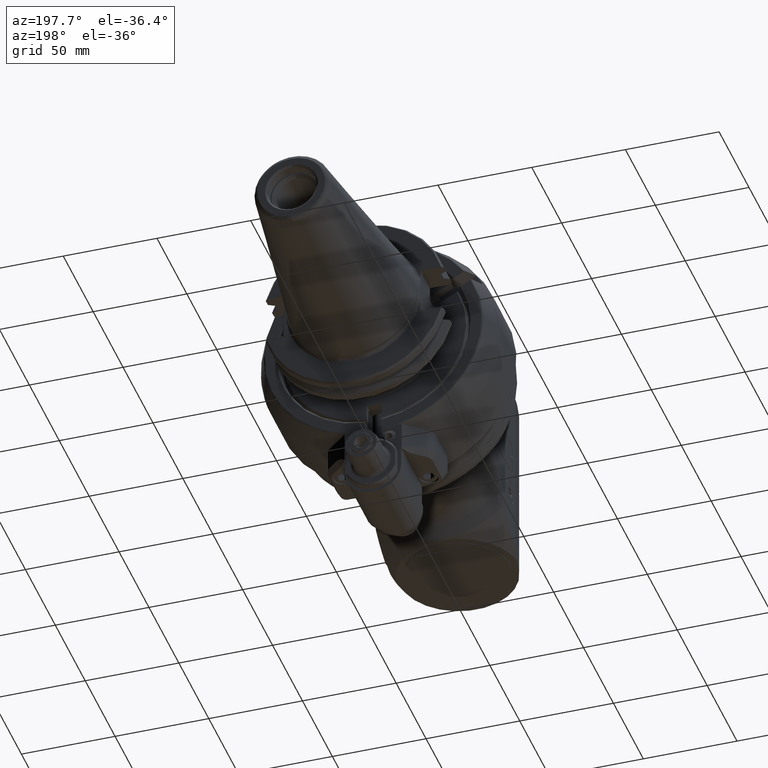
[diagram: clean part render]
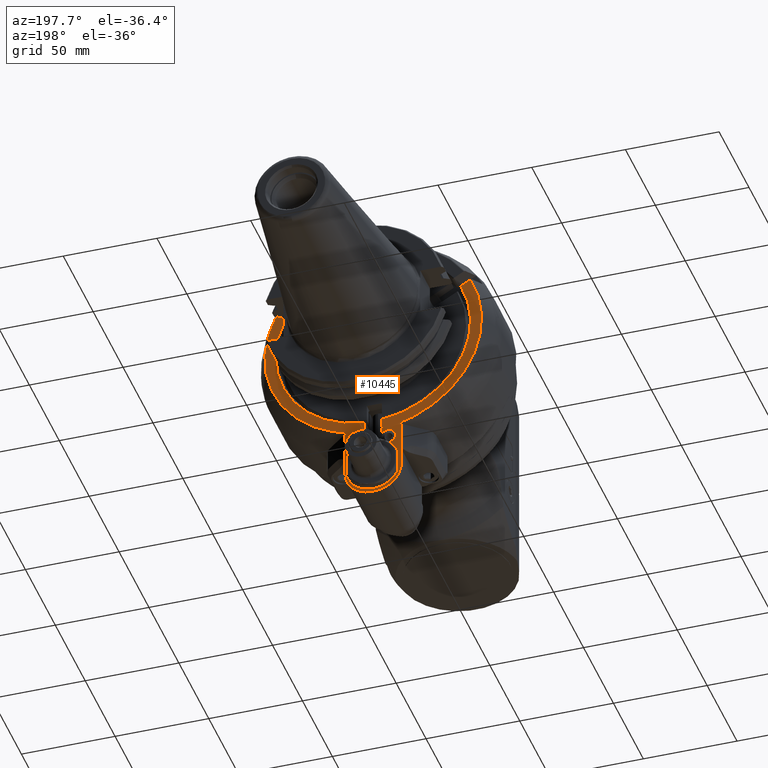
[diagram: same view with one face highlighted and labeled with its STEP entity id]
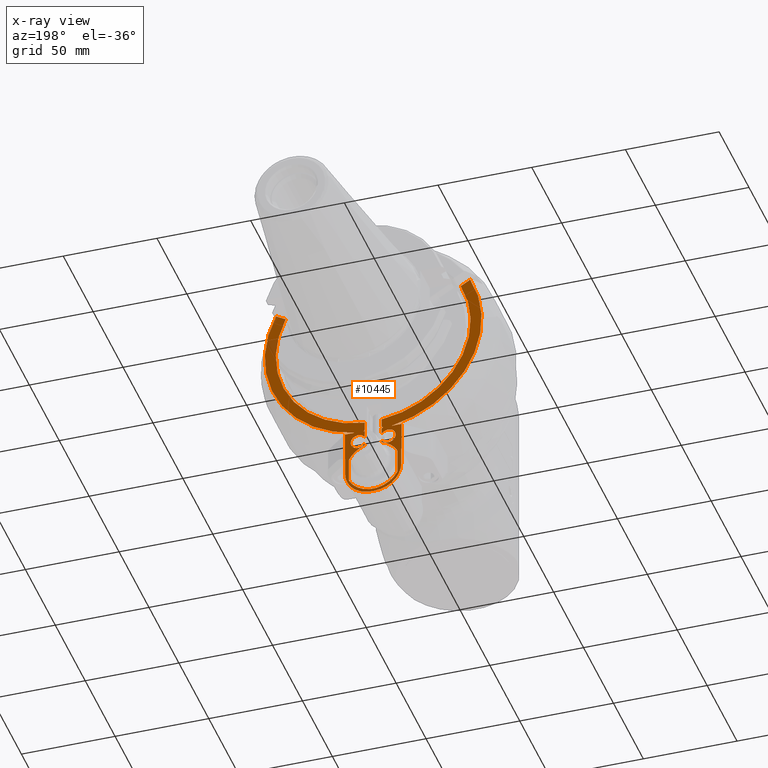
[diagram: x-ray of the same camera — body ghosted, the highlighted face saturated]
A machine part, auxiliary view. The second image highlights one B-rep face of the part: STEP entity #10445.
The next image is the same camera in x-ray: the body ghosted, the highlighted face saturated — about 3% of this face is hidden behind the body in this view.
In plain terms, the highlighted planar face has unit normal (0, -1, 0).
Its self-contained STEP definition (entity closure, byte-faithful):
#555=LINE('',#16483,#1248);
#559=LINE('',#16495,#1252);
#561=LINE('',#16502,#1254);
#562=LINE('',#16506,#1255);
#563=LINE('',#16510,#1256);
#564=LINE('',#16512,#1257);
#565=LINE('',#16516,#1258);
#566=LINE('',#16518,#1259);
#567=LINE('',#16524,#1260);
#568=LINE('',#16528,#1261);
#569=LINE('',#16532,#1262);
#570=LINE('',#16534,#1263);
#571=LINE('',#16536,#1264);
#572=LINE('',#16538,#1265);
#573=LINE('',#16540,#1266);
#574=LINE('',#16542,#1267);
#575=LINE('',#16544,#1268);
#576=LINE('',#16548,#1269);
#577=LINE('',#16551,#1270);
#578=LINE('',#16553,#1271);
#579=LINE('',#16557,#1272);
#580=LINE('',#16561,#1273);
#581=LINE('',#16567,#1274);
#582=LINE('',#16569,#1275);
#583=LINE('',#16573,#1276);
#584=LINE('',#16574,#1277);
#1248=VECTOR('',#12761,0.1128483482606);
#1252=VECTOR('',#12775,9.5);
#1254=VECTOR('',#12781,12.84523257867);
#1255=VECTOR('',#12784,12.84523257867);
#1256=VECTOR('',#12787,0.7159512479098);
#1257=VECTOR('',#12788,0.3775010008008);
#1258=VECTOR('',#12791,0.3775010008008);
#1259=VECTOR('',#12792,2.5);
#1260=VECTOR('',#12797,4.195077453973);
#1261=VECTOR('',#12800,5.87481064190873);
#1262=VECTOR('',#12803,5.157013978268);
#1263=VECTOR('',#12804,15.5);
#1264=VECTOR('',#12805,0.1128483482606);
#1265=VECTOR('',#12806,0.7629679276389);
#1266=VECTOR('',#12807,10.);
#1267=VECTOR('',#12808,10.);
#1268=VECTOR('',#12809,8.70839142844);
#1269=VECTOR('',#12812,2.);
#1270=VECTOR('',#12815,15.5);
#1271=VECTOR('',#12816,5.157013978268);
#1272=VECTOR('',#12819,5.87482370131279);
#1273=VECTOR('',#12822,4.195077453972);
#1274=VECTOR('',#12827,2.5);
#1275=VECTOR('',#12828,0.3775010008008);
#1276=VECTOR('',#12831,0.3775010008008);
#1277=VECTOR('',#12832,0.7159512479098);
#2192=PLANE('',#11245);
#2489=FACE_OUTER_BOUND('',#3159,.T.);
#3159=EDGE_LOOP('',(#7436,#7437,#7438,#7439,#7440,#7441,#7442,#7443,#7444,
#7445,#7446,#7447,#7448,#7449,#7450,#7451,#7452,#7453,#7454,#7455,#7456,
#7457,#7458,#7459,#7460,#7461,#7462,#7463,#7464,#7465,#7466,#7467,#7468,
#7469,#7470,#7471,#7472,#7473,#7474,#7475,#7476));
#3936=CIRCLE('',#11246,14.5);
#3937=CIRCLE('',#11247,14.5);
#3938=CIRCLE('',#11248,14.5);
#3939=CIRCLE('',#11249,4.);
#3940=CIRCLE('',#11250,1.);
#3941=CIRCLE('',#11251,1.);
#3942=CIRCLE('',#11252,52.);
#3943=CIRCLE('',#11253,57.86292973919);
#3944=CIRCLE('',#11254,14.);
#3945=CIRCLE('',#11255,14.);
#3946=CIRCLE('',#11256,57.86292973919);
#3947=CIRCLE('',#11257,52.);
#3948=CIRCLE('',#11258,1.);
#3949=CIRCLE('',#11259,1.);
#3950=CIRCLE('',#11260,4.);
#4592=VERTEX_POINT('',#16480);
#4593=VERTEX_POINT('',#16482);
#4596=VERTEX_POINT('',#16494);
#4597=VERTEX_POINT('',#16498);
#4598=VERTEX_POINT('',#16499);
#4599=VERTEX_POINT('',#16501);
#4600=VERTEX_POINT('',#16503);
#4601=VERTEX_POINT('',#16505);
#4602=VERTEX_POINT('',#16507);
#4603=VERTEX_POINT('',#16509);
#4604=VERTEX_POINT('',#16511);
#4605=VERTEX_POINT('',#16513);
#4606=VERTEX_POINT('',#16515);
#4607=VERTEX_POINT('',#16517);
#4608=VERTEX_POINT('',#16519);
#4609=VERTEX_POINT('',#16521);
#4610=VERTEX_POINT('',#16523);
#4611=VERTEX_POINT('',#16525);
#4612=VERTEX_POINT('',#16527);
#4613=VERTEX_POINT('',#16529);
#4614=VERTEX_POINT('',#16531);
#4615=VERTEX_POINT('',#16533);
#4616=VERTEX_POINT('',#16535);
#4617=VERTEX_POINT('',#16537);
#4618=VERTEX_POINT('',#16539);
#4619=VERTEX_POINT('',#16541);
#4620=VERTEX_POINT('',#16543);
#4621=VERTEX_POINT('',#16545);
#4622=VERTEX_POINT('',#16547);
#4623=VERTEX_POINT('',#16550);
#4624=VERTEX_POINT('',#16552);
#4625=VERTEX_POINT('',#16554);
#4626=VERTEX_POINT('',#16556);
#4627=VERTEX_POINT('',#16558);
#4628=VERTEX_POINT('',#16560);
#4629=VERTEX_POINT('',#16562);
#4630=VERTEX_POINT('',#16564);
#4631=VERTEX_POINT('',#16566);
#4632=VERTEX_POINT('',#16568);
#4633=VERTEX_POINT('',#16570);
#4634=VERTEX_POINT('',#16572);
#5691=EDGE_CURVE('',#4593,#4592,#555,.T.);
#5697=EDGE_CURVE('',#4596,#4593,#559,.T.);
#5699=EDGE_CURVE('',#4597,#4598,#3936,.T.);
#5700=EDGE_CURVE('',#4599,#4597,#561,.T.);
#5701=EDGE_CURVE('',#4600,#4599,#3937,.T.);
#5702=EDGE_CURVE('',#4601,#4600,#562,.T.);
#5703=EDGE_CURVE('',#4602,#4601,#3938,.T.);
#5704=EDGE_CURVE('',#4602,#4603,#563,.T.);
#5705=EDGE_CURVE('',#4604,#4603,#564,.T.);
#5706=EDGE_CURVE('',#4604,#4605,#3939,.T.);
#5707=EDGE_CURVE('',#4606,#4605,#565,.T.);
#5708=EDGE_CURVE('',#4606,#4607,#566,.T.);
#5709=EDGE_CURVE('',#4607,#4608,#3940,.T.);
#5710=EDGE_CURVE('',#4608,#4609,#3941,.T.);
#5711=EDGE_CURVE('',#4610,#4609,#567,.T.);
#5712=EDGE_CURVE('',#4610,#4611,#3942,.T.);
#5713=EDGE_CURVE('',#4611,#4612,#568,.T.);
#5714=EDGE_CURVE('',#4612,#4613,#3943,.T.);
#5715=EDGE_CURVE('',#4613,#4614,#569,.T.);
#5716=EDGE_CURVE('',#4615,#4614,#570,.T.);
#5717=EDGE_CURVE('',#4615,#4616,#571,.T.);
#5718=EDGE_CURVE('',#4617,#4616,#572,.T.);
#5719=EDGE_CURVE('',#4617,#4618,#573,.T.);
#5720=EDGE_CURVE('',#4618,#4619,#574,.T.);
#5721=EDGE_CURVE('',#4620,#4619,#575,.T.);
#5722=EDGE_CURVE('',#4620,#4621,#3944,.T.);
#5723=EDGE_CURVE('',#4621,#4622,#576,.T.);
#5724=EDGE_CURVE('',#4622,#4596,#3945,.T.);
#5725=EDGE_CURVE('',#4623,#4592,#577,.T.);
#5726=EDGE_CURVE('',#4624,#4623,#578,.T.);
#5727=EDGE_CURVE('',#4624,#4625,#3946,.T.);
#5728=EDGE_CURVE('',#4625,#4626,#579,.T.);
#5729=EDGE_CURVE('',#4626,#4627,#3947,.T.);
#5730=EDGE_CURVE('',#4628,#4627,#580,.T.);
#5731=EDGE_CURVE('',#4628,#4629,#3948,.T.);
#5732=EDGE_CURVE('',#4629,#4630,#3949,.T.);
#5733=EDGE_CURVE('',#4630,#4631,#581,.T.);
#5734=EDGE_CURVE('',#4632,#4631,#582,.T.);
#5735=EDGE_CURVE('',#4632,#4633,#3950,.T.);
#5736=EDGE_CURVE('',#4634,#4633,#583,.T.);
#5737=EDGE_CURVE('',#4634,#4598,#584,.T.);
#7436=ORIENTED_EDGE('',*,*,#5699,.F.);
#7437=ORIENTED_EDGE('',*,*,#5700,.F.);
#7438=ORIENTED_EDGE('',*,*,#5701,.F.);
#7439=ORIENTED_EDGE('',*,*,#5702,.F.);
#7440=ORIENTED_EDGE('',*,*,#5703,.F.);
#7441=ORIENTED_EDGE('',*,*,#5704,.T.);
#7442=ORIENTED_EDGE('',*,*,#5705,.F.);
#7443=ORIENTED_EDGE('',*,*,#5706,.T.);
#7444=ORIENTED_EDGE('',*,*,#5707,.F.);
#7445=ORIENTED_EDGE('',*,*,#5708,.T.);
#7446=ORIENTED_EDGE('',*,*,#5709,.T.);
#7447=ORIENTED_EDGE('',*,*,#5710,.T.);
#7448=ORIENTED_EDGE('',*,*,#5711,.F.);
#7449=ORIENTED_EDGE('',*,*,#5712,.T.);
#7450=ORIENTED_EDGE('',*,*,#5713,.T.);
#7451=ORIENTED_EDGE('',*,*,#5714,.T.);
#7452=ORIENTED_EDGE('',*,*,#5715,.T.);
#7453=ORIENTED_EDGE('',*,*,#5716,.F.);
#7454=ORIENTED_EDGE('',*,*,#5717,.T.);
#7455=ORIENTED_EDGE('',*,*,#5718,.F.);
#7456=ORIENTED_EDGE('',*,*,#5719,.T.);
#7457=ORIENTED_EDGE('',*,*,#5720,.T.);
#7458=ORIENTED_EDGE('',*,*,#5721,.F.);
#7459=ORIENTED_EDGE('',*,*,#5722,.T.);
#7460=ORIENTED_EDGE('',*,*,#5723,.T.);
#7461=ORIENTED_EDGE('',*,*,#5724,.T.);
#7462=ORIENTED_EDGE('',*,*,#5697,.T.);
#7463=ORIENTED_EDGE('',*,*,#5691,.T.);
#7464=ORIENTED_EDGE('',*,*,#5725,.F.);
#7465=ORIENTED_EDGE('',*,*,#5726,.F.);
#7466=ORIENTED_EDGE('',*,*,#5727,.T.);
#7467=ORIENTED_EDGE('',*,*,#5728,.T.);
#7468=ORIENTED_EDGE('',*,*,#5729,.T.);
#7469=ORIENTED_EDGE('',*,*,#5730,.F.);
#7470=ORIENTED_EDGE('',*,*,#5731,.T.);
#7471=ORIENTED_EDGE('',*,*,#5732,.T.);
#7472=ORIENTED_EDGE('',*,*,#5733,.T.);
#7473=ORIENTED_EDGE('',*,*,#5734,.F.);
#7474=ORIENTED_EDGE('',*,*,#5735,.T.);
#7475=ORIENTED_EDGE('',*,*,#5736,.F.);
#7476=ORIENTED_EDGE('',*,*,#5737,.T.);
#10445=ADVANCED_FACE('',(#2489),#2192,.F.);
#11245=AXIS2_PLACEMENT_3D('',#16497,#12777,#12778);
#11246=AXIS2_PLACEMENT_3D('',#16500,#12779,#12780);
#11247=AXIS2_PLACEMENT_3D('',#16504,#12782,#12783);
#11248=AXIS2_PLACEMENT_3D('',#16508,#12785,#12786);
#11249=AXIS2_PLACEMENT_3D('',#16514,#12789,#12790);
#11250=AXIS2_PLACEMENT_3D('',#16520,#12793,#12794);
#11251=AXIS2_PLACEMENT_3D('',#16522,#12795,#12796);
#11252=AXIS2_PLACEMENT_3D('',#16526,#12798,#12799);
#11253=AXIS2_PLACEMENT_3D('',#16530,#12801,#12802);
#11254=AXIS2_PLACEMENT_3D('',#16546,#12810,#12811);
#11255=AXIS2_PLACEMENT_3D('',#16549,#12813,#12814);
#11256=AXIS2_PLACEMENT_3D('',#16555,#12817,#12818);
#11257=AXIS2_PLACEMENT_3D('',#16559,#12820,#12821);
#11258=AXIS2_PLACEMENT_3D('',#16563,#12823,#12824);
#11259=AXIS2_PLACEMENT_3D('',#16565,#12825,#12826);
#11260=AXIS2_PLACEMENT_3D('',#16571,#12829,#12830);
#12761=DIRECTION('',(-1.,0.,0.));
#12775=DIRECTION('',(0.,0.,1.));
#12777=DIRECTION('center_axis',(0.,-1.,0.));
#12778=DIRECTION('ref_axis',(0.,0.,1.));
#12779=DIRECTION('center_axis',(0.,1.,0.));
#12780=DIRECTION('ref_axis',(-0.896551724137936,0.,0.442939054436718));
#12781=DIRECTION('',(0.,0.,1.));
#12782=DIRECTION('center_axis',(0.,1.,0.));
#12783=DIRECTION('ref_axis',(0.896551724137936,0.,-0.442939054436718));
#12784=DIRECTION('',(0.,0.,-1.));
#12785=DIRECTION('center_axis',(0.,1.,0.));
#12786=DIRECTION('ref_axis',(0.310344827586198,0.,0.950624051868294));
#12787=DIRECTION('',(0.,0.,1.));
#12788=DIRECTION('',(-1.,0.,0.));
#12789=DIRECTION('center_axis',(0.,-1.,0.));
#12790=DIRECTION('ref_axis',(-0.7806247497998,0.,-0.625));
#12791=DIRECTION('',(1.,0.,0.));
#12792=DIRECTION('',(0.,0.,1.));
#12793=DIRECTION('center_axis',(0.,1.,0.));
#12794=DIRECTION('ref_axis',(-1.,0.,0.));
#12795=DIRECTION('center_axis',(0.,1.,0.));
#12796=DIRECTION('ref_axis',(-6.306066779871E-14,0.,-1.));
#12797=DIRECTION('',(0.,0.,-1.));
#12798=DIRECTION('center_axis',(0.,-1.,0.));
#12799=DIRECTION('ref_axis',(0.086538461538464,0.,-0.996248510500546));
#12800=DIRECTION('',(0.86602540378304,0.,0.500000000002423));
#12801=DIRECTION('center_axis',(0.,1.,0.));
#12802=DIRECTION('ref_axis',(0.894683546168776,0.,0.446700517365788));
#12803=DIRECTION('',(1.,0.,0.));
#12804=DIRECTION('',(0.,0.,1.));
#12805=DIRECTION('',(-1.,0.,0.));
#12806=DIRECTION('',(-3.073496587321E-9,-8.660976697957E-13,1.));
#12807=DIRECTION('',(-0.511857066365652,-1.95794482512405E-8,-0.859070627836587));
#12808=DIRECTION('',(0.988648123412767,0.,-0.150249419541024));
#12809=DIRECTION('',(0.,0.,1.));
#12810=DIRECTION('center_axis',(0.,1.,0.));
#12811=DIRECTION('ref_axis',(1.,0.,0.));
#12812=DIRECTION('',(-1.,0.,0.));
#12813=DIRECTION('center_axis',(0.,1.,0.));
#12814=DIRECTION('ref_axis',(0.,0.,-1.));
#12815=DIRECTION('',(0.,0.,-1.));
#12816=DIRECTION('',(-1.,0.,0.));
#12817=DIRECTION('center_axis',(0.,1.,0.));
#12818=DIRECTION('ref_axis',(-0.172058940237993,0.,-0.985086656636957));
#12819=DIRECTION('',(0.866025403783331,0.,-0.500000000001918));
#12820=DIRECTION('center_axis',(0.,-1.,0.));
#12821=DIRECTION('ref_axis',(-0.897715334658661,0.,0.440575961576081));
#12822=DIRECTION('',(0.,0.,1.));
#12823=DIRECTION('center_axis',(0.,1.,0.));
#12824=DIRECTION('ref_axis',(1.,0.,-4.973799150321E-14));
#12825=DIRECTION('center_axis',(0.,1.,0.));
#12826=DIRECTION('ref_axis',(8.437694987151E-14,0.,1.));
#12827=DIRECTION('',(0.,0.,-1.));
#12828=DIRECTION('',(1.,0.,0.));
#12829=DIRECTION('center_axis',(0.,-1.,0.));
#12830=DIRECTION('ref_axis',(0.7806247497998,0.,0.625));
#12831=DIRECTION('',(-1.,0.,0.));
#12832=DIRECTION('',(0.,0.,-1.));
#16480=CARTESIAN_POINT('',(-15.11284834826,42.49999976923,-72.5));
#16482=CARTESIAN_POINT('',(-15.,42.49999976923,-72.5));
#16483=CARTESIAN_POINT('',(-15.,42.49999976923,-72.5));
#16494=CARTESIAN_POINT('',(-15.,42.49999976923,-82.));
#16495=CARTESIAN_POINT('',(-15.,42.49999976923,-82.));
#16497=CARTESIAN_POINT('Origin',(0.,42.49999976923,-55.75));
#16498=CARTESIAN_POINT('',(-13.,42.49999976923,-73.57738371067));
#16499=CARTESIAN_POINT('',(-4.5,42.49999976923,-66.21595124791));
#16500=CARTESIAN_POINT('Origin',(0.,42.49999976923,-80.));
#16501=CARTESIAN_POINT('',(-13.,42.49999976923,-86.42261628933));
#16502=CARTESIAN_POINT('',(-13.,42.49999976923,-86.42261628933));
#16503=CARTESIAN_POINT('',(13.,42.49999976923,-86.42261628933));
#16504=CARTESIAN_POINT('Origin',(0.,42.49999976923,-80.));
#16505=CARTESIAN_POINT('',(13.,42.49999976923,-73.57738371067));
#16506=CARTESIAN_POINT('',(13.,42.49999976923,-73.57738371067));
#16507=CARTESIAN_POINT('',(4.5,42.49999976923,-66.21595124791));
#16508=CARTESIAN_POINT('Origin',(0.,42.49999976923,-80.));
#16509=CARTESIAN_POINT('',(4.5,42.49999976923,-65.5));
#16510=CARTESIAN_POINT('',(4.5,42.49999976923,-66.21595124791));
#16511=CARTESIAN_POINT('',(4.877501000801,42.49999976923,-65.5));
#16512=CARTESIAN_POINT('',(4.877501000801,42.49999976923,-65.5));
#16513=CARTESIAN_POINT('',(4.877501000801,42.49999976923,-60.5));
#16514=CARTESIAN_POINT('Origin',(8.,42.49999976923,-63.));
#16515=CARTESIAN_POINT('',(4.5,42.49999976923,-60.5));
#16516=CARTESIAN_POINT('',(4.5,42.49999976923,-60.5));
#16517=CARTESIAN_POINT('',(4.5,42.49999976923,-58.));
#16518=CARTESIAN_POINT('',(4.5,42.49999976923,-60.5));
#16519=CARTESIAN_POINT('',(5.5,42.49999976923,-57.));
#16520=CARTESIAN_POINT('Origin',(5.5,42.49999976923,-58.));
#16521=CARTESIAN_POINT('',(4.5,42.49999976923,-56.));
#16522=CARTESIAN_POINT('Origin',(5.5,42.49999976923,-56.));
#16523=CARTESIAN_POINT('',(4.5,42.49999976923,-51.80492254603));
#16524=CARTESIAN_POINT('',(4.5,42.49999976923,-51.80492254603));
#16525=CARTESIAN_POINT('',(46.68119740225,42.49999976923,22.90995000196));
#16526=CARTESIAN_POINT('Origin',(0.,42.49999976923,0.));
#16527=CARTESIAN_POINT('',(51.7690111463578,42.499999769225,25.8474006346634));
#16528=CARTESIAN_POINT('',(46.68119740225,42.49999976923,22.90995000196));
#16529=CARTESIAN_POINT('',(9.955834369993,42.49999976923,-57.));
#16530=CARTESIAN_POINT('Origin',(0.,42.49999976923,0.));
#16531=CARTESIAN_POINT('',(15.11284834826,42.49999976923,-57.));
#16532=CARTESIAN_POINT('',(9.955834369993,42.49999976923,-57.));
#16533=CARTESIAN_POINT('',(15.11284834826,42.49999976923,-72.5));
#16534=CARTESIAN_POINT('',(15.11284834826,42.49999976923,-72.5));
#16535=CARTESIAN_POINT('',(15.,42.49999976923,-72.5));
#16536=CARTESIAN_POINT('',(15.11284834826,42.49999976923,-72.5));
#16537=CARTESIAN_POINT('',(15.0000000030541,42.4999997694296,-73.2629679283757));
#16538=CARTESIAN_POINT('',(15.00000000234,42.49999976923,-73.26296792764));
#16539=CARTESIAN_POINT('',(14.98435207752,42.49999976923,-73.28923048454));
#16540=CARTESIAN_POINT('',(15.0000000046865,42.4999997698287,-73.2629679290382));
#16541=CARTESIAN_POINT('',(15.,42.49999976923,-73.29160857156));
#16542=CARTESIAN_POINT('',(14.98435207752,42.49999976923,-73.28923048454));
#16543=CARTESIAN_POINT('',(15.,42.49999976923,-82.));
#16544=CARTESIAN_POINT('',(15.,42.49999976923,-82.));
#16545=CARTESIAN_POINT('',(1.,42.49999976923,-96.));
#16546=CARTESIAN_POINT('Origin',(1.,42.49999976923,-82.));
#16547=CARTESIAN_POINT('',(-1.,42.49999976923,-96.));
#16548=CARTESIAN_POINT('',(1.,42.49999976923,-96.));
#16549=CARTESIAN_POINT('Origin',(-1.,42.49999976923,-82.));
#16550=CARTESIAN_POINT('',(-15.11284834826,42.49999976923,-57.));
#16551=CARTESIAN_POINT('',(-15.11284834826,42.49999976923,-57.));
#16552=CARTESIAN_POINT('',(-9.955834369993,42.49999976923,-57.));
#16553=CARTESIAN_POINT('',(-9.955834369993,42.49999976923,-57.));
#16554=CARTESIAN_POINT('',(-51.7690111498771,42.4999997692258,25.8474006369835));
#16555=CARTESIAN_POINT('Origin',(0.,42.49999976923,0.));
#16556=CARTESIAN_POINT('',(-46.68119740225,42.49999976923,22.90995000196));
#16557=CARTESIAN_POINT('',(-51.76894397034,42.49999976923,25.84736185262));
#16558=CARTESIAN_POINT('',(-4.5,42.49999976923,-51.80492254603));
#16559=CARTESIAN_POINT('Origin',(0.,42.49999976923,0.));
#16560=CARTESIAN_POINT('',(-4.5,42.49999976923,-56.));
#16561=CARTESIAN_POINT('',(-4.5,42.49999976923,-56.));
#16562=CARTESIAN_POINT('',(-5.5,42.49999976923,-57.));
#16563=CARTESIAN_POINT('Origin',(-5.5,42.49999976923,-56.));
#16564=CARTESIAN_POINT('',(-4.5,42.49999976923,-58.));
#16565=CARTESIAN_POINT('Origin',(-5.5,42.49999976923,-58.));
#16566=CARTESIAN_POINT('',(-4.5,42.49999976923,-60.5));
#16567=CARTESIAN_POINT('',(-4.5,42.49999976923,-58.));
#16568=CARTESIAN_POINT('',(-4.877501000801,42.49999976923,-60.5));
#16569=CARTESIAN_POINT('',(-4.877501000801,42.49999976923,-60.5));
#16570=CARTESIAN_POINT('',(-4.877501000801,42.49999976923,-65.5));
#16571=CARTESIAN_POINT('Origin',(-8.,42.49999976923,-63.));
#16572=CARTESIAN_POINT('',(-4.5,42.49999976923,-65.5));
#16573=CARTESIAN_POINT('',(-4.5,42.49999976923,-65.5));
#16574=CARTESIAN_POINT('',(-4.5,42.49999976923,-65.5));